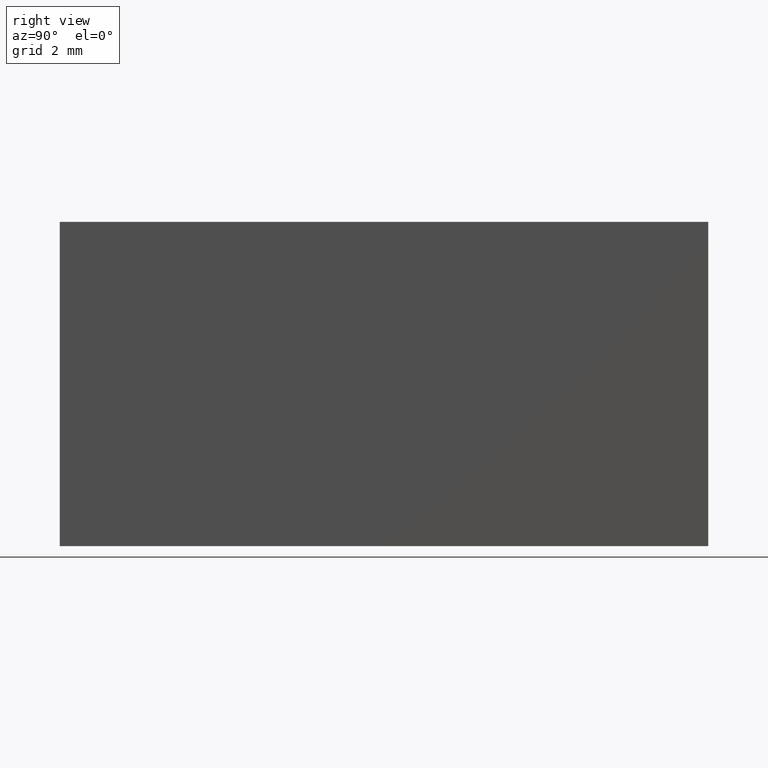
[diagram: clean part render]
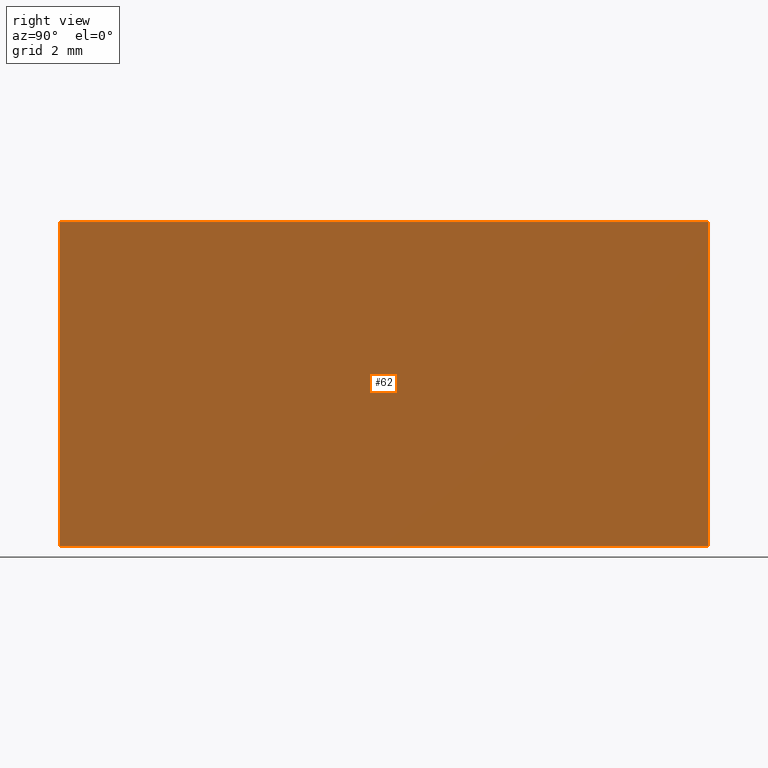
[diagram: same view with one face highlighted and labeled with its STEP entity id]
A machine part, right view. The second image highlights one B-rep face of the part: STEP entity #62.
In plain terms, the highlighted planar face has unit normal (-1, 0, 0).
Its self-contained STEP definition (entity closure, byte-faithful):
#2 = EDGE_CURVE ( 'NONE', #11, #69, #25, .T. ) ;
#9 = LINE ( 'NONE', #41, #49 ) ;
#11 = VERTEX_POINT ( 'NONE', #94 ) ;
#13 = CARTESIAN_POINT ( 'NONE',  ( -5.564795665148737100, 20.00000000000000000, -5.000000000000000000 ) ) ;
#14 = VECTOR ( 'NONE', #136, 1000.000000000000000 ) ;
#22 = CARTESIAN_POINT ( 'NONE',  ( -5.564795665148737100, 20.00000000000000000, -5.000000000000000000 ) ) ;
#25 = LINE ( 'NONE', #42, #14 ) ;
#26 = VERTEX_POINT ( 'NONE', #204 ) ;
#28 = EDGE_CURVE ( 'NONE', #92, #26, #9, .T. ) ;
#37 = LINE ( 'NONE', #112, #74 ) ;
#41 = CARTESIAN_POINT ( 'NONE',  ( -5.564795665148737100, 20.00000000000000000, -5.000000000000000000 ) ) ;
#42 = CARTESIAN_POINT ( 'NONE',  ( -5.564795665148733600, 20.00000000000000000, 5.000000000000000000 ) ) ;
#49 = VECTOR ( 'NONE', #180, 1000.000000000000000 ) ;
#51 = EDGE_CURVE ( 'NONE', #11, #92, #119, .T. ) ;
#60 = DIRECTION ( 'NONE',  ( -3.469446951953614200E-016, -0.0000000000000000000, -1.000000000000000000 ) ) ;
#62 = ADVANCED_FACE ( 'NONE', ( #143 ), #125, .F. ) ;
#69 = VERTEX_POINT ( 'NONE', #96 ) ;
#70 = DIRECTION ( 'NONE',  ( -3.469446951953614200E-016, -0.0000000000000000000, -1.000000000000000000 ) ) ;
#74 = VECTOR ( 'NONE', #60, 1000.000000000000000 ) ;
#80 = EDGE_CURVE ( 'NONE', #69, #26, #37, .T. ) ;
#90 = CARTESIAN_POINT ( 'NONE',  ( -5.564795665148737100, 20.00000000000000000, -5.000000000000000000 ) ) ;
#91 = DIRECTION ( 'NONE',  ( 3.469446951953614200E-016, 0.0000000000000000000, 1.000000000000000000 ) ) ;
#92 = VERTEX_POINT ( 'NONE', #22 ) ;
#94 = CARTESIAN_POINT ( 'NONE',  ( -5.564795665148733600, 20.00000000000000000, 5.000000000000000000 ) ) ;
#96 = CARTESIAN_POINT ( 'NONE',  ( -5.564795665148733600, 0.0000000000000000000, 5.000000000000000000 ) ) ;
#112 = CARTESIAN_POINT ( 'NONE',  ( -5.564795665148737100, 0.0000000000000000000, -5.000000000000000000 ) ) ;
#113 = ORIENTED_EDGE ( 'NONE', *, *, #80, .T. ) ;
#119 = LINE ( 'NONE', #90, #166 ) ;
#125 = PLANE ( 'NONE',  #126 ) ;
#126 = AXIS2_PLACEMENT_3D ( 'NONE', #13, #156, #91 ) ;
#136 = DIRECTION ( 'NONE',  ( -0.0000000000000000000, -1.000000000000000000, -0.0000000000000000000 ) ) ;
#143 = FACE_OUTER_BOUND ( 'NONE', #162, .T. ) ;
#156 = DIRECTION ( 'NONE',  ( -1.000000000000000000, 0.0000000000000000000, 3.469446951953614200E-016 ) ) ;
#162 = EDGE_LOOP ( 'NONE', ( #113, #197, #187, #169 ) ) ;
#166 = VECTOR ( 'NONE', #70, 1000.000000000000000 ) ;
#169 = ORIENTED_EDGE ( 'NONE', *, *, #2, .T. ) ;
#180 = DIRECTION ( 'NONE',  ( -0.0000000000000000000, -1.000000000000000000, -0.0000000000000000000 ) ) ;
#187 = ORIENTED_EDGE ( 'NONE', *, *, #51, .F. ) ;
#197 = ORIENTED_EDGE ( 'NONE', *, *, #28, .F. ) ;
#204 = CARTESIAN_POINT ( 'NONE',  ( -5.564795665148737100, 0.0000000000000000000, -5.000000000000000000 ) ) ;